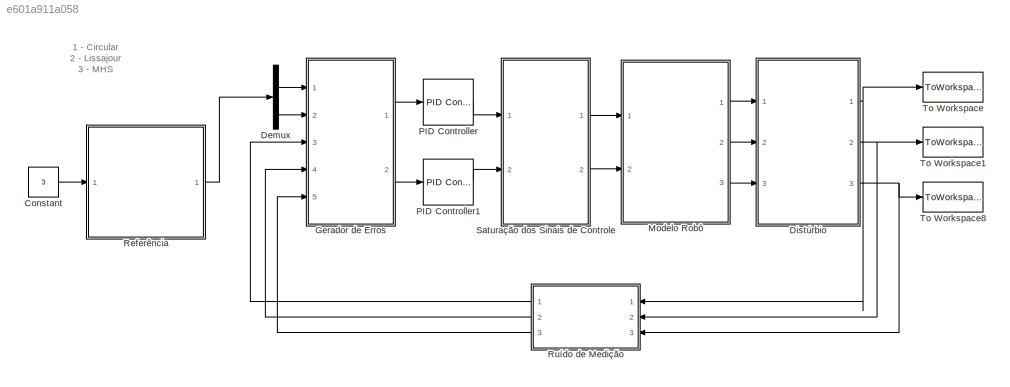
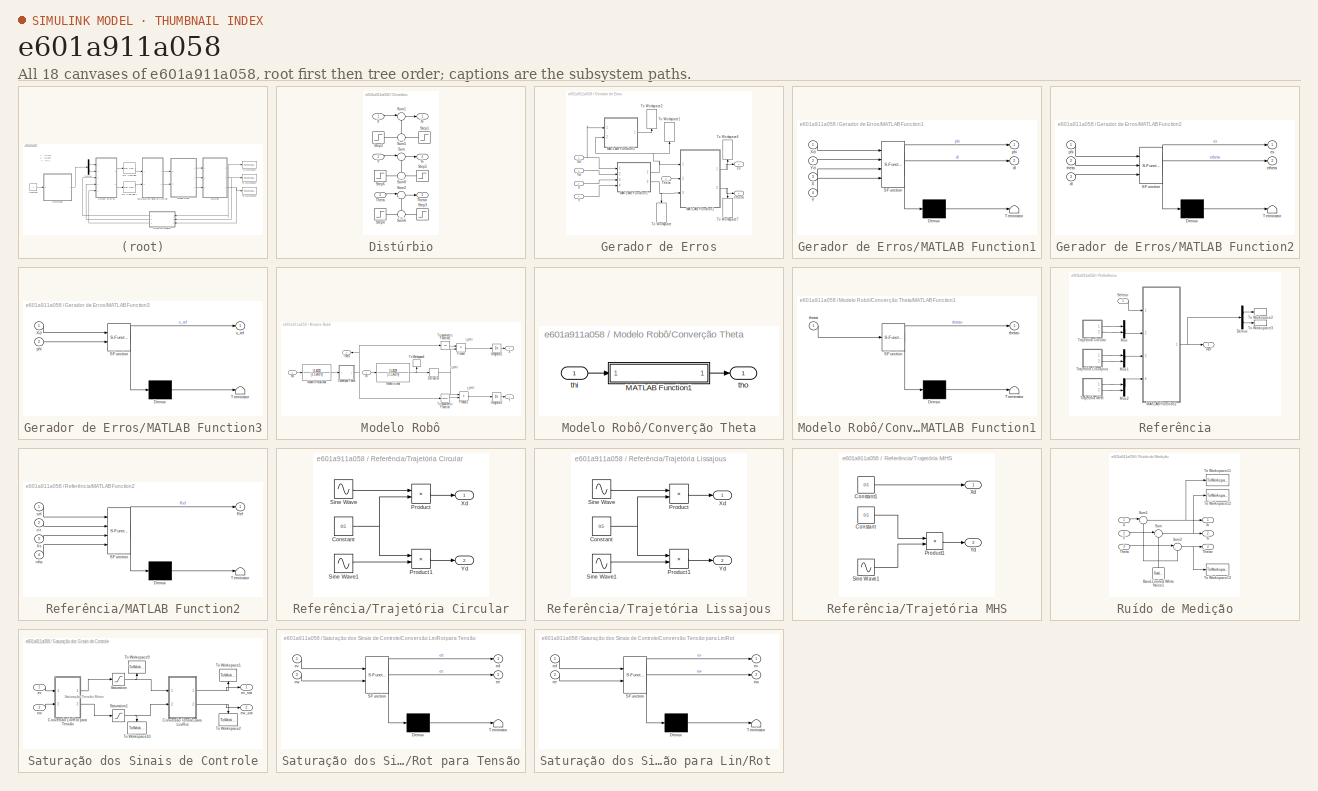
[diagram: thumbnail index - all 18 canvases of the model, root first then tree order]
MODEL slx_e601a911a058
KIND model
CONFIG AbsTol = auto
CONFIG EnableMultiTasking = off
CONFIG FixedStep = auto
CONFIG MaxStep = auto
CONFIG MinStep = auto
CONFIG RelTol = 1e-3
CONFIG SampleTimeConstraint = Unconstrained
CONFIG Solver = FixedStepAuto
CONFIG SolverName = FixedStepAuto
CONFIG StartTime = 0.0
CONFIG StopFcn = figure,plot(out.tout,out.Theta);\nhold on;\nplot(out.tout,out.phi);\ntitle('Ângulo de referência (Phi) e ângulo robô (Theta)');\nxlabel('Tempo (s)');\nylabel('Angulos (rad)');\nlegend('Theta','Phi');\ngrid\n\nfigure,\nsubplot(2,1,1)\nplot(out.tout,out.ed);\nhold on;\nplot(out.tout,out.ee);\nxlabel('Tempo (s)');\nylabel('(a)');\ngrid\n\nsubplot(2,1,2),\nplot(out.tout,out.etheta);\nhold on;\nplot(out.tout,out.es);\nylabe...<+734ch>
CONFIG StopTime = 120
BLOCK [Constant] Constant
  Value = 3
BLOCK [Demux] Demux
  DisplayOption = bar
  Outputs = 2
  Ports = [1, 2]
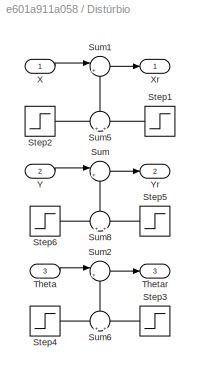
BLOCK [SubSystem] Distúrbio
  Ports = [3, 3]
  RequestExecContextInheritance = off
BLOCK [Step] Distúrbio/Step1
  After = 0.03
  SampleTime = 0
  Time = 60
BLOCK [Step] Distúrbio/Step2
  After = -0.03
  SampleTime = 0
  Time = 61
BLOCK [Step] Distúrbio/Step3
  After = -0.5
  SampleTime = 0
  Time = 61
BLOCK [Step] Distúrbio/Step4
  After = 0.5
  SampleTime = 0
  Time = 60
BLOCK [Step] Distúrbio/Step5
  After = -0.03
  SampleTime = 0
  Time = 60
BLOCK [Step] Distúrbio/Step6
  After = 0.03
  SampleTime = 0
  Time = 61
BLOCK [Sum] Distúrbio/Sum
  IconShape = round
  InputSameDT = off
  Inputs = |++
  OutDataTypeStr = Inherit: Inherit via internal rule
  Ports = [2, 1]
  SaturateOnIntegerOverflow = off
BLOCK [Sum] Distúrbio/Sum1
  IconShape = round
  InputSameDT = off
  Inputs = |++
  OutDataTypeStr = Inherit: Inherit via internal rule
  Ports = [2, 1]
  SaturateOnIntegerOverflow = off
BLOCK [Sum] Distúrbio/Sum2
  IconShape = round
  InputSameDT = off
  Inputs = |++
  OutDataTypeStr = Inherit: Inherit via internal rule
  Ports = [2, 1]
  SaturateOnIntegerOverflow = off
BLOCK [Sum] Distúrbio/Sum5
  IconShape = round
  InputSameDT = off
  Inputs = +|+
  OutDataTypeStr = Inherit: Inherit via internal rule
  Ports = [2, 1]
  SaturateOnIntegerOverflow = off
BLOCK [Sum] Distúrbio/Sum6
  IconShape = round
  InputSameDT = off
  Inputs = +|+
  OutDataTypeStr = Inherit: Inherit via internal rule
  Ports = [2, 1]
  SaturateOnIntegerOverflow = off
BLOCK [Sum] Distúrbio/Sum8
  IconShape = round
  InputSameDT = off
  Inputs = +|+
  OutDataTypeStr = Inherit: Inherit via internal rule
  Ports = [2, 1]
  SaturateOnIntegerOverflow = off
BLOCK [Inport] Distúrbio/Theta 
  IconDisplay = Port number
  Port = 3
BLOCK [Outport] Distúrbio/Thetar
  IconDisplay = Port number
  Port = 3
BLOCK [Inport] Distúrbio/X 
  IconDisplay = Port number
BLOCK [Outport] Distúrbio/Xr
  IconDisplay = Port number
BLOCK [Inport] Distúrbio/Y
  IconDisplay = Port number
  Port = 2
BLOCK [Outport] Distúrbio/Yr
  IconDisplay = Port number
  Port = 2
BLOCK [SubSystem] Gerador de Erros
  Ports = [5, 2]
  RequestExecContextInheritance = off
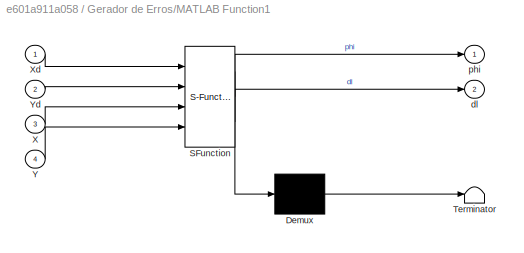
BLOCK [SubSystem] Gerador de Erros/MATLAB Function1
  ErrorFcn = Stateflow.Translate.translate
  PermitHierarchicalResolution = ExplicitOnly
  Ports = [4, 2]
  RequestExecContextInheritance = off
  SFBlockType = MATLAB Function
  TreatAsAtomicUnit = on
BLOCK [Demux] Gerador de Erros/MATLAB Function1/ Demux 
  Outputs = 1
  Ports = [1, 1]
BLOCK [S-Function] Gerador de Erros/MATLAB Function1/ SFunction 
  EnableBusSupport = on
  FunctionName = sf_sfun
  PortCounts = [4 3]
  Ports = [4, 3]
  SFcnIsStateOwnerBlock = off
  SFunctionDeploymentMode = off
  Tag = Stateflow S-Function Modelo_Robo_Drumonsters_teste 3
BLOCK [Terminator] Gerador de Erros/MATLAB Function1/ Terminator 
BLOCK [Inport] Gerador de Erros/MATLAB Function1/X
  IconDisplay = Port number
  Port = 3
BLOCK [Inport] Gerador de Erros/MATLAB Function1/Xd
  IconDisplay = Port number
BLOCK [Inport] Gerador de Erros/MATLAB Function1/Y
  IconDisplay = Port number
  Port = 4
BLOCK [Inport] Gerador de Erros/MATLAB Function1/Yd
  IconDisplay = Port number
  Port = 2
BLOCK [Outport] Gerador de Erros/MATLAB Function1/dl
  IconDisplay = Port number
  Port = 2
BLOCK [Outport] Gerador de Erros/MATLAB Function1/phi
  IconDisplay = Port number
BLOCK [SubSystem] Gerador de Erros/MATLAB Function2
  ErrorFcn = Stateflow.Translate.translate
  PermitHierarchicalResolution = ExplicitOnly
  Ports = [3, 2]
  RequestExecContextInheritance = off
  SFBlockType = MATLAB Function
  TreatAsAtomicUnit = on
BLOCK [Demux] Gerador de Erros/MATLAB Function2/ Demux 
  Outputs = 1
  Ports = [1, 1]
BLOCK [S-Function] Gerador de Erros/MATLAB Function2/ SFunction 
  EnableBusSupport = on
  FunctionName = sf_sfun
  PortCounts = [3 3]
  Ports = [3, 3]
  SFcnIsStateOwnerBlock = off
  SFunctionDeploymentMode = off
  Tag = Stateflow S-Function Modelo_Robo_Drumonsters_teste 4
BLOCK [Terminator] Gerador de Erros/MATLAB Function2/ Terminator 
BLOCK [Inport] Gerador de Erros/MATLAB Function2/dl
  IconDisplay = Port number
  Port = 3
BLOCK [Outport] Gerador de Erros/MATLAB Function2/es
  IconDisplay = Port number
BLOCK [Outport] Gerador de Erros/MATLAB Function2/etheta
  IconDisplay = Port number
  Port = 2
BLOCK [Inport] Gerador de Erros/MATLAB Function2/phi
  IconDisplay = Port number
BLOCK [Inport] Gerador de Erros/MATLAB Function2/theta
  IconDisplay = Port number
  Port = 2
BLOCK [SubSystem] Gerador de Erros/MATLAB Function3
  ErrorFcn = Stateflow.Translate.translate
  PermitHierarchicalResolution = ExplicitOnly
  Ports = [2, 1]
  RequestExecContextInheritance = off
  SFBlockType = MATLAB Function
  TreatAsAtomicUnit = on
BLOCK [Demux] Gerador de Erros/MATLAB Function3/ Demux 
  Outputs = 1
  Ports = [1, 1]
BLOCK [S-Function] Gerador de Erros/MATLAB Function3/ SFunction 
  EnableBusSupport = on
  FunctionName = sf_sfun
  PortCounts = [2 2]
  Ports = [2, 2]
  SFcnIsStateOwnerBlock = off
  SFunctionDeploymentMode = off
  Tag = Stateflow S-Function Modelo_Robo_Drumonsters_teste 2
BLOCK [Terminator] Gerador de Erros/MATLAB Function3/ Terminator 
BLOCK [Inport] Gerador de Erros/MATLAB Function3/Xd
  IconDisplay = Port number
BLOCK [Inport] Gerador de Erros/MATLAB Function3/phi
  IconDisplay = Port number
  Port = 2
BLOCK [Outport] Gerador de Erros/MATLAB Function3/s_ref
  IconDisplay = Port number
BLOCK [Inport] Gerador de Erros/Theta 
  IconDisplay = Port number
  Port = 5
BLOCK [ToWorkspace] Gerador de Erros/To Workspace
  FixptAsFi = on
  MaxDataPoints = inf
  Ports = [1]
  SampleTime = -1
  VariableName = dl
BLOCK [ToWorkspace] Gerador de Erros/To Workspace1
  FixptAsFi = on
  MaxDataPoints = inf
  Ports = [1]
  SampleTime = -1
  VariableName = phi
BLOCK [ToWorkspace] Gerador de Erros/To Workspace2
  FixptAsFi = on
  MaxDataPoints = inf
  Ports = [1]
  SampleTime = -1
  VariableName = s_ref
BLOCK [ToWorkspace] Gerador de Erros/To Workspace6
  FixptAsFi = on
  MaxDataPoints = inf
  Ports = [1]
  SampleTime = -1
  VariableName = es
BLOCK [ToWorkspace] Gerador de Erros/To Workspace7
  FixptAsFi = on
  MaxDataPoints = inf
  Ports = [1]
  SampleTime = -1
  VariableName = etheta
BLOCK [Inport] Gerador de Erros/X
  IconDisplay = Port number
  Port = 3
BLOCK [Inport] Gerador de Erros/Xd
  IconDisplay = Port number
BLOCK [Inport] Gerador de Erros/Y
  IconDisplay = Port number
  Port = 4
BLOCK [Inport] Gerador de Erros/Yd
  IconDisplay = Port number
  Port = 2
BLOCK [Outport] Gerador de Erros/es
  IconDisplay = Port number
BLOCK [Outport] Gerador de Erros/etheta
  IconDisplay = Port number
  Port = 2
BLOCK [SubSystem] Modelo Robô
  Ports = [2, 3]
  RequestExecContextInheritance = off
BLOCK [SubSystem] Modelo Robô/Converção Theta
  Ports = [1, 1]
  RequestExecContextInheritance = off
BLOCK [SubSystem] Modelo Robô/Converção Theta/MATLAB Function1
  ErrorFcn = Stateflow.Translate.translate
  PermitHierarchicalResolution = ExplicitOnly
  Ports = [1, 1]
  RequestExecContextInheritance = off
  SFBlockType = MATLAB Function
  TreatAsAtomicUnit = on
BLOCK [Demux] Modelo Robô/Converção Theta/MATLAB Function1/ Demux 
  Outputs = 1
  Ports = [1, 1]
BLOCK [S-Function] Modelo Robô/Converção Theta/MATLAB Function1/ SFunction 
  EnableBusSupport = on
  FunctionName = sf_sfun
  PortCounts = [1 2]
  Ports = [1, 2]
  SFcnIsStateOwnerBlock = off
  SFunctionDeploymentMode = off
  Tag = Stateflow S-Function Modelo_Robo_Drumonsters_teste 1
BLOCK [Terminator] Modelo Robô/Converção Theta/MATLAB Function1/ Terminator 
BLOCK [Inport] Modelo Robô/Converção Theta/MATLAB Function1/thetai
  IconDisplay = Port number
BLOCK [Outport] Modelo Robô/Converção Theta/MATLAB Function1/thetao
  IconDisplay = Port number
BLOCK [Inport] Modelo Robô/Converção Theta/thi 
  IconDisplay = Port number
BLOCK [Outport] Modelo Robô/Converção Theta/tho
  IconDisplay = Port number
BLOCK [Derivative] Modelo Robô/Derivative
BLOCK [Integrator] Modelo Robô/Integrator1
  Ports = [1, 1]
BLOCK [Integrator] Modelo Robô/Integrator2
  Ports = [1, 1]
BLOCK [TransferFcn] Modelo Robô/Modelo Linear
  Denominator = [1 1.2672 0]
  Numerator = [1.2672]
BLOCK [TransferFcn] Modelo Robô/Modelo Rotacional
  Denominator = [1 1.6473 0]
  Numerator = [1.6473]
BLOCK [Product] Modelo Robô/Product
  InputSameDT = off
  OutDataTypeStr = Inherit: Inherit via internal rule
  Ports = [2, 1]
  RndMeth = Floor
  SaturateOnIntegerOverflow = off
BLOCK [Product] Modelo Robô/Product1
  InputSameDT = off
  OutDataTypeStr = Inherit: Inherit via internal rule
  Ports = [2, 1]
  RndMeth = Floor
  SaturateOnIntegerOverflow = off
BLOCK [Outport] Modelo Robô/Theta 
  IconDisplay = Port number
  Port = 3
BLOCK [ToWorkspace] Modelo Robô/To Workspace4
  FixptAsFi = on
  MaxDataPoints = inf
  Ports = [1]
  SampleTime = -1
  VariableName = s
BLOCK [Trigonometry] Modelo Robô/Trigonometric Function
  Ports = [1, 1]
BLOCK [Trigonometry] Modelo Robô/Trigonometric Function1
  Operator = cos
  Ports = [1, 1]
BLOCK [Outport] Modelo Robô/X
  IconDisplay = Port number
BLOCK [Outport] Modelo Robô/Y
  IconDisplay = Port number
  Port = 2
BLOCK [Inport] Modelo Robô/ev 
  IconDisplay = Port number
BLOCK [Inport] Modelo Robô/ew
  IconDisplay = Port number
  Port = 2
BLOCK [Reference] PID Controller  REF=simulink/Continuous/PID Controller
  Ports = [1, 1]
  SourceBlock = simulink/Continuous/PID Controller
  SourceProductBaseCode = SL
  SourceProductName = Simulink
  SourceType = PID 1dof
BLOCK [Reference] PID Controller1  REF=simulink/Continuous/PID Controller
  Ports = [1, 1]
  SourceBlock = simulink/Continuous/PID Controller
  SourceProductBaseCode = SL
  SourceProductName = Simulink
  SourceType = PID 1dof
BLOCK [SubSystem] Referência
  Ports = [1, 1]
  RequestExecContextInheritance = off
BLOCK [Demux] Referência/Demux
  DisplayOption = bar
  Outputs = 2
  Ports = [1, 2]
BLOCK [SubSystem] Referência/MATLAB Function2
  ErrorFcn = Stateflow.Translate.translate
  PermitHierarchicalResolution = ExplicitOnly
  Ports = [4, 1]
  RequestExecContextInheritance = off
  SFBlockType = MATLAB Function
  TreatAsAtomicUnit = on
BLOCK [Demux] Referência/MATLAB Function2/ Demux 
  Outputs = 1
  Ports = [1, 1]
BLOCK [S-Function] Referência/MATLAB Function2/ SFunction 
  EnableBusSupport = on
  FunctionName = sf_sfun
  PortCounts = [4 2]
  Ports = [4, 2]
  SFcnIsStateOwnerBlock = off
  SFunctionDeploymentMode = off
  Tag = Stateflow S-Function Modelo_Robo_Drumonsters_teste 5
BLOCK [Terminator] Referência/MATLAB Function2/ Terminator 
BLOCK [Outport] Referência/MATLAB Function2/Ref
  IconDisplay = Port number
BLOCK [Inport] Referência/MATLAB Function2/cir
  IconDisplay = Port number
  Port = 2
BLOCK [Inport] Referência/MATLAB Function2/lis
  IconDisplay = Port number
  Port = 3
BLOCK [Inport] Referência/MATLAB Function2/mhs
  IconDisplay = Port number
  Port = 4
BLOCK [Inport] Referência/MATLAB Function2/sel
  IconDisplay = Port number
BLOCK [Mux] Referência/Mux
  DisplayOption = bar
  Inputs = 2
  Ports = [2, 1]
BLOCK [Mux] Referência/Mux1
  DisplayOption = bar
  Inputs = 2
  Ports = [2, 1]
BLOCK [Mux] Referência/Mux2
  DisplayOption = bar
  Inputs = 2
  Ports = [2, 1]
BLOCK [Outport] Referência/Ref
  IconDisplay = Port number
BLOCK [Inport] Referência/Seletor
  IconDisplay = Port number
BLOCK [ToWorkspace] Referência/To Workspace2
  FixptAsFi = on
  MaxDataPoints = inf
  Ports = [1]
  SampleTime = -1
  VariableName = Xd
BLOCK [ToWorkspace] Referência/To Workspace3
  FixptAsFi = on
  MaxDataPoints = inf
  Ports = [1]
  SampleTime = -1
  VariableName = Yd
BLOCK [SubSystem] Referência/Trajetória Circular
  Ports = [0, 2]
  RequestExecContextInheritance = off
BLOCK [Constant] Referência/Trajetória Circular/Constant
  Value = 0.5
BLOCK [Product] Referência/Trajetória Circular/Product
  InputSameDT = off
  OutDataTypeStr = Inherit: Inherit via internal rule
  Ports = [2, 1]
  RndMeth = Floor
  SaturateOnIntegerOverflow = off
BLOCK [Product] Referência/Trajetória Circular/Product1
  InputSameDT = off
  OutDataTypeStr = Inherit: Inherit via internal rule
  Ports = [2, 1]
  RndMeth = Floor
  SaturateOnIntegerOverflow = off
BLOCK [Sin] Referência/Trajetória Circular/Sine Wave
  Frequency = 0.0625
  Phase = pi/2
  Ports = [0, 1]
  SampleTime = 0
BLOCK [Sin] Referência/Trajetória Circular/Sine Wave1
  Frequency = 0.0625
  Ports = [0, 1]
  SampleTime = 0
BLOCK [Outport] Referência/Trajetória Circular/Xd
  IconDisplay = Port number
BLOCK [Outport] Referência/Trajetória Circular/Yd
  IconDisplay = Port number
  Port = 2
BLOCK [SubSystem] Referência/Trajetória Lissajous
  Ports = [0, 2]
  RequestExecContextInheritance = off
BLOCK [Constant] Referência/Trajetória Lissajous/Constant
  Value = 0.5
BLOCK [Product] Referência/Trajetória Lissajous/Product
  InputSameDT = off
  OutDataTypeStr = Inherit: Inherit via internal rule
  Ports = [2, 1]
  RndMeth = Floor
  SaturateOnIntegerOverflow = off
BLOCK [Product] Referência/Trajetória Lissajous/Product1
  InputSameDT = off
  OutDataTypeStr = Inherit: Inherit via internal rule
  Ports = [2, 1]
  RndMeth = Floor
  SaturateOnIntegerOverflow = off
BLOCK [Sin] Referência/Trajetória Lissajous/Sine Wave
  Frequency = 0.05
  Ports = [0, 1]
  SampleTime = 0
BLOCK [Sin] Referência/Trajetória Lissajous/Sine Wave1
  Frequency = 0.1
  Ports = [0, 1]
  SampleTime = 0
BLOCK [Outport] Referência/Trajetória Lissajous/Xd
  IconDisplay = Port number
BLOCK [Outport] Referência/Trajetória Lissajous/Yd
  IconDisplay = Port number
  Port = 2
BLOCK [SubSystem] Referência/Trajetória MHS
  Ports = [0, 2]
  RequestExecContextInheritance = off
BLOCK [Constant] Referência/Trajetória MHS/Constant
  Value = 0.5
BLOCK [Constant] Referência/Trajetória MHS/Constant1
  Value = 0.5
BLOCK [Product] Referência/Trajetória MHS/Product1
  InputSameDT = off
  OutDataTypeStr = Inherit: Inherit via internal rule
  Ports = [2, 1]
  RndMeth = Floor
  SaturateOnIntegerOverflow = off
BLOCK [Sin] Referência/Trajetória MHS/Sine Wave1
  Frequency = 0.1
  Ports = [0, 1]
  SampleTime = 0
BLOCK [Outport] Referência/Trajetória MHS/Xd
  IconDisplay = Port number
BLOCK [Outport] Referência/Trajetória MHS/Yd
  IconDisplay = Port number
  Port = 2
BLOCK [SubSystem] Ruído de Medição
  Ports = [3, 3]
  RequestExecContextInheritance = off
BLOCK [Reference] Ruído de Medição/Band-Limited White Noise1  REF=simulink/Sources/Band-Limited
White Noise
  Ports = [0, 1]
  SourceBlock = simulink/Sources/Band-Limited\nWhite Noise
  SourceProductBaseCode = SL
  SourceProductName = Simulink
  SourceType = Band-Limited White Noise.
BLOCK [Sum] Ruído de Medição/Sum
  IconShape = round
  InputSameDT = off
  Inputs = |++
  OutDataTypeStr = Inherit: Inherit via internal rule
  Ports = [2, 1]
  SaturateOnIntegerOverflow = off
BLOCK [Sum] Ruído de Medição/Sum1
  IconShape = round
  InputSameDT = off
  Inputs = |++
  OutDataTypeStr = Inherit: Inherit via internal rule
  Ports = [2, 1]
  SaturateOnIntegerOverflow = off
BLOCK [Sum] Ruído de Medição/Sum2
  IconShape = round
  InputSameDT = off
  Inputs = |++
  OutDataTypeStr = Inherit: Inherit via internal rule
  Ports = [2, 1]
  SaturateOnIntegerOverflow = off
BLOCK [Inport] Ruído de Medição/Theta 
  IconDisplay = Port number
  Port = 3
BLOCK [Outport] Ruído de Medição/Thetar
  IconDisplay = Port number
  Port = 3
BLOCK [ToWorkspace] Ruído de Medição/To Workspace11
  FixptAsFi = on
  MaxDataPoints = inf
  Ports = [1]
  SampleTime = -1
  VariableName = Xr
BLOCK [ToWorkspace] Ruído de Medição/To Workspace12
  FixptAsFi = on
  MaxDataPoints = inf
  Ports = [1]
  SampleTime = -1
  VariableName = Yr
BLOCK [ToWorkspace] Ruído de Medição/To Workspace13
  FixptAsFi = on
  MaxDataPoints = inf
  Ports = [1]
  SampleTime = -1
  VariableName = Thetar
BLOCK [Inport] Ruído de Medição/X 
  IconDisplay = Port number
BLOCK [Outport] Ruído de Medição/Xr
  IconDisplay = Port number
BLOCK [Inport] Ruído de Medição/Y
  IconDisplay = Port number
  Port = 2
BLOCK [Outport] Ruído de Medição/Yr
  IconDisplay = Port number
  Port = 2
BLOCK [SubSystem] Saturação dos Sinais de Controle
  Ports = [2, 2]
  RequestExecContextInheritance = off
BLOCK [SubSystem] Saturação dos Sinais de Controle/Conversão Lin//Rot para Tensão
  ErrorFcn = Stateflow.Translate.translate
  PermitHierarchicalResolution = ExplicitOnly
  Ports = [2, 2]
  RequestExecContextInheritance = off
  SFBlockType = MATLAB Function
  TreatAsAtomicUnit = on
BLOCK [Demux] Saturação dos Sinais de Controle/Conversão Lin//Rot para Tensão/ Demux 
  Outputs = 1
  Ports = [1, 1]
BLOCK [S-Function] Saturação dos Sinais de Controle/Conversão Lin//Rot para Tensão/ SFunction 
  EnableBusSupport = on
  FunctionName = sf_sfun
  PortCounts = [2 3]
  Ports = [2, 3]
  SFcnIsStateOwnerBlock = off
  SFunctionDeploymentMode = off
  Tag = Stateflow S-Function Modelo_Robo_Drumonsters_teste 6
BLOCK [Terminator] Saturação dos Sinais de Controle/Conversão Lin//Rot para Tensão/ Terminator 
BLOCK [Outport] Saturação dos Sinais de Controle/Conversão Lin//Rot para Tensão/ed
  IconDisplay = Port number
BLOCK [Outport] Saturação dos Sinais de Controle/Conversão Lin//Rot para Tensão/ee
  IconDisplay = Port number
  Port = 2
BLOCK [Inport] Saturação dos Sinais de Controle/Conversão Lin//Rot para Tensão/ev
  IconDisplay = Port number
BLOCK [Inport] Saturação dos Sinais de Controle/Conversão Lin//Rot para Tensão/ew
  IconDisplay = Port number
  Port = 2
BLOCK [SubSystem] Saturação dos Sinais de Controle/Conversão Tensão para Lin//Rot 
  ErrorFcn = Stateflow.Translate.translate
  PermitHierarchicalResolution = ExplicitOnly
  Ports = [2, 2]
  RequestExecContextInheritance = off
  SFBlockType = MATLAB Function
  TreatAsAtomicUnit = on
BLOCK [Demux] Saturação dos Sinais de Controle/Conversão Tensão para Lin//Rot / Demux 
  Outputs = 1
  Ports = [1, 1]
BLOCK [S-Function] Saturação dos Sinais de Controle/Conversão Tensão para Lin//Rot / SFunction 
  EnableBusSupport = on
  FunctionName = sf_sfun
  PortCounts = [2 3]
  Ports = [2, 3]
  SFcnIsStateOwnerBlock = off
  SFunctionDeploymentMode = off
  Tag = Stateflow S-Function Modelo_Robo_Drumonsters_teste 7
BLOCK [Terminator] Saturação dos Sinais de Controle/Conversão Tensão para Lin//Rot / Terminator 
BLOCK [Inport] Saturação dos Sinais de Controle/Conversão Tensão para Lin//Rot /ed
  IconDisplay = Port number
BLOCK [Inport] Saturação dos Sinais de Controle/Conversão Tensão para Lin//Rot /ee
  IconDisplay = Port number
  Port = 2
BLOCK [Outport] Saturação dos Sinais de Controle/Conversão Tensão para Lin//Rot /ev
  IconDisplay = Port number
BLOCK [Outport] Saturação dos Sinais de Controle/Conversão Tensão para Lin//Rot /ew
  IconDisplay = Port number
  Port = 2
BLOCK [Saturate] Saturação dos Sinais de Controle/Saturation
  InputPortMap = u0
  LowerLimit = -6
  Ports = [1, 1]
  UpperLimit = 6
BLOCK [Saturate] Saturação dos Sinais de Controle/Saturation1
  InputPortMap = u0
  LowerLimit = -6
  Ports = [1, 1]
  UpperLimit = 6
BLOCK [ToWorkspace] Saturação dos Sinais de Controle/To Workspace1
  FixptAsFi = on
  MaxDataPoints = inf
  Ports = [1]
  SampleTime = -1
  VariableName = Ut
BLOCK [ToWorkspace] Saturação dos Sinais de Controle/To Workspace10
  FixptAsFi = on
  MaxDataPoints = inf
  Ports = [1]
  SampleTime = -1
  VariableName = ee
BLOCK [ToWorkspace] Saturação dos Sinais de Controle/To Workspace2
  FixptAsFi = on
  MaxDataPoints = inf
  Ports = [1]
  SampleTime = -1
  VariableName = Ur
BLOCK [ToWorkspace] Saturação dos Sinais de Controle/To Workspace9
  FixptAsFi = on
  MaxDataPoints = inf
  Ports = [1]
  SampleTime = -1
  VariableName = ed
BLOCK [Inport] Saturação dos Sinais de Controle/ev 
  IconDisplay = Port number
BLOCK [Outport] Saturação dos Sinais de Controle/ev_sat
  IconDisplay = Port number
BLOCK [Inport] Saturação dos Sinais de Controle/ew
  IconDisplay = Port number
  Port = 2
BLOCK [Outport] Saturação dos Sinais de Controle/ew_sat
  IconDisplay = Port number
  Port = 2
BLOCK [ToWorkspace] To Workspace
  FixptAsFi = on
  MaxDataPoints = inf
  Ports = [1]
  SampleTime = -1
  VariableName = X
BLOCK [ToWorkspace] To Workspace1
  FixptAsFi = on
  MaxDataPoints = inf
  Ports = [1]
  SampleTime = -1
  VariableName = Y
BLOCK [ToWorkspace] To Workspace8
  FixptAsFi = on
  MaxDataPoints = inf
  Ports = [1]
  SampleTime = -1
  VariableName = Theta
ANNOTATION (root): 1 - Circular 2 - Lissajour 3 - MHS
ANNOTATION Modelo Robô: s_ponto
ANNOTATION Modelo Robô: x_ponto
ANNOTATION Modelo Robô: y_ponto
ANNOTATION Saturação dos Sinais de Controle: Saturação Tensão Motor
LINE Constant:1 -> Referência:1
LINE Demux:1 -> Gerador de Erros:1
LINE Demux:2 -> Gerador de Erros:2
LINE Distúrbio/Step1:1 -> Distúrbio/Sum5:2
LINE Distúrbio/Step2:1 -> Distúrbio/Sum5:1
LINE Distúrbio/Step3:1 -> Distúrbio/Sum6:2
LINE Distúrbio/Step4:1 -> Distúrbio/Sum6:1
LINE Distúrbio/Step5:1 -> Distúrbio/Sum8:2
LINE Distúrbio/Step6:1 -> Distúrbio/Sum8:1
LINE Distúrbio/Sum1:1 -> Distúrbio/Xr:1
LINE Distúrbio/Sum2:1 -> Distúrbio/Thetar:1
LINE Distúrbio/Sum5:1 -> Distúrbio/Sum1:2
LINE Distúrbio/Sum6:1 -> Distúrbio/Sum2:2
LINE Distúrbio/Sum8:1 -> Distúrbio/Sum:2
LINE Distúrbio/Sum:1 -> Distúrbio/Yr:1
LINE Distúrbio/Theta :1 -> Distúrbio/Sum2:1
LINE Distúrbio/X :1 -> Distúrbio/Sum1:1
LINE Distúrbio/Y:1 -> Distúrbio/Sum:1
NET Distúrbio:1 -> Ruído de Medição:1, To Workspace:1
NET Distúrbio:2 -> Ruído de Medição:2, To Workspace1:1
NET Distúrbio:3 -> Ruído de Medição:3, To Workspace8:1
NET Gerador de Erros/MATLAB Function1:1 -> Gerador de Erros/MATLAB Function2:1, Gerador de Erros/MATLAB Function3:2, Gerador de Erros/To Workspace1:1
NET Gerador de Erros/MATLAB Function1:2 -> Gerador de Erros/MATLAB Function2:3, Gerador de Erros/To Workspace:1
NET Gerador de Erros/MATLAB Function2:1 -> Gerador de Erros/To Workspace6:1, Gerador de Erros/es:1
NET Gerador de Erros/MATLAB Function2:2 -> Gerador de Erros/To Workspace7:1, Gerador de Erros/etheta:1
LINE Gerador de Erros/MATLAB Function3:1 -> Gerador de Erros/To Workspace2:1
LINE Gerador de Erros/Theta :1 -> Gerador de Erros/MATLAB Function2:2
LINE Gerador de Erros/X:1 -> Gerador de Erros/MATLAB Function1:3
NET Gerador de Erros/Xd:1 -> Gerador de Erros/MATLAB Function1:1, Gerador de Erros/MATLAB Function3:1
LINE Gerador de Erros/Y:1 -> Gerador de Erros/MATLAB Function1:4
LINE Gerador de Erros/Yd:1 -> Gerador de Erros/MATLAB Function1:2
LINE Gerador de Erros:1 -> PID Controller:1
LINE Gerador de Erros:2 -> PID Controller1:1
LINE Modelo Robô/Converção Theta/MATLAB Function1:1 -> Modelo Robô/Converção Theta/tho:1
LINE Modelo Robô/Converção Theta/thi :1 -> Modelo Robô/Converção Theta/MATLAB Function1:1
NET Modelo Robô/Converção Theta:1 -> Modelo Robô/Theta :1, Modelo Robô/Trigonometric Function1:1, Modelo Robô/Trigonometric Function:1
NET Modelo Robô/Derivative:1 -> Modelo Robô/Product1:1, Modelo Robô/Product:2
LINE Modelo Robô/Integrator1:1 -> Modelo Robô/X:1
LINE Modelo Robô/Integrator2:1 -> Modelo Robô/Y:1
NET Modelo Robô/Modelo Linear:1 -> Modelo Robô/Derivative:1, Modelo Robô/To Workspace4:1
LINE Modelo Robô/Modelo Rotacional:1 -> Modelo Robô/Converção Theta:1
LINE Modelo Robô/Product1:1 -> Modelo Robô/Integrator2:1
LINE Modelo Robô/Product:1 -> Modelo Robô/Integrator1:1
LINE Modelo Robô/Trigonometric Function1:1 -> Modelo Robô/Product:1
LINE Modelo Robô/Trigonometric Function:1 -> Modelo Robô/Product1:2
LINE Modelo Robô/ev :1 -> Modelo Robô/Modelo Linear:1
LINE Modelo Robô/ew:1 -> Modelo Robô/Modelo Rotacional:1
LINE Modelo Robô:1 -> Distúrbio:1
LINE Modelo Robô:2 -> Distúrbio:2
LINE Modelo Robô:3 -> Distúrbio:3
LINE PID Controller1:1 -> Saturação dos Sinais de Controle:2
LINE PID Controller:1 -> Saturação dos Sinais de Controle:1
LINE Referência/Demux:1 -> Referência/To Workspace2:1
LINE Referência/Demux:2 -> Referência/To Workspace3:1
NET Referência/MATLAB Function2:1 -> Referência/Demux:1, Referência/Ref:1
LINE Referência/Mux1:1 -> Referência/MATLAB Function2:3
LINE Referência/Mux2:1 -> Referência/MATLAB Function2:4
LINE Referência/Mux:1 -> Referência/MATLAB Function2:2
LINE Referência/Seletor:1 -> Referência/MATLAB Function2:1
NET Referência/Trajetória Circular/Constant:1 -> Referência/Trajetória Circular/Product1:1, Referência/Trajetória Circular/Product:2
LINE Referência/Trajetória Circular/Product1:1 -> Referência/Trajetória Circular/Yd:1
LINE Referência/Trajetória Circular/Product:1 -> Referência/Trajetória Circular/Xd:1
LINE Referência/Trajetória Circular/Sine Wave1:1 -> Referência/Trajetória Circular/Product1:2
LINE Referência/Trajetória Circular/Sine Wave:1 -> Referência/Trajetória Circular/Product:1
LINE Referência/Trajetória Circular:1 -> Referência/Mux:1
LINE Referência/Trajetória Circular:2 -> Referência/Mux:2
NET Referência/Trajetória Lissajous/Constant:1 -> Referência/Trajetória Lissajous/Product1:1, Referência/Trajetória Lissajous/Product:2
LINE Referência/Trajetória Lissajous/Product1:1 -> Referência/Trajetória Lissajous/Yd:1
LINE Referência/Trajetória Lissajous/Product:1 -> Referência/Trajetória Lissajous/Xd:1
LINE Referência/Trajetória Lissajous/Sine Wave1:1 -> Referência/Trajetória Lissajous/Product1:2
LINE Referência/Trajetória Lissajous/Sine Wave:1 -> Referência/Trajetória Lissajous/Product:1
LINE Referência/Trajetória Lissajous:1 -> Referência/Mux1:1
LINE Referência/Trajetória Lissajous:2 -> Referência/Mux1:2
LINE Referência/Trajetória MHS/Constant1:1 -> Referência/Trajetória MHS/Xd:1
LINE Referência/Trajetória MHS/Constant:1 -> Referência/Trajetória MHS/Product1:1
LINE Referência/Trajetória MHS/Product1:1 -> Referência/Trajetória MHS/Yd:1
LINE Referência/Trajetória MHS/Sine Wave1:1 -> Referência/Trajetória MHS/Product1:2
LINE Referência/Trajetória MHS:1 -> Referência/Mux2:1
LINE Referência/Trajetória MHS:2 -> Referência/Mux2:2
LINE Referência:1 -> Demux:1
NET Ruído de Medição/Band-Limited White Noise1:1 -> Ruído de Medição/Sum1:2, Ruído de Medição/Sum2:2, Ruído de Medição/Sum:2
NET Ruído de Medição/Sum1:1 -> Ruído de Medição/To Workspace11:1, Ruído de Medição/Xr:1
NET Ruído de Medição/Sum2:1 -> Ruído de Medição/Thetar:1, Ruído de Medição/To Workspace13:1
NET Ruído de Medição/Sum:1 -> Ruído de Medição/To Workspace12:1, Ruído de Medição/Yr:1
LINE Ruído de Medição/Theta :1 -> Ruído de Medição/Sum2:1
LINE Ruído de Medição/X :1 -> Ruído de Medição/Sum1:1
LINE Ruído de Medição/Y:1 -> Ruído de Medição/Sum:1
LINE Ruído de Medição:1 -> Gerador de Erros:3
LINE Ruído de Medição:2 -> Gerador de Erros:4
LINE Ruído de Medição:3 -> Gerador de Erros:5
LINE Saturação dos Sinais de Controle/Conversão Lin//Rot para Tensão:1 -> Saturação dos Sinais de Controle/Saturation:1
LINE Saturação dos Sinais de Controle/Conversão Lin//Rot para Tensão:2 -> Saturação dos Sinais de Controle/Saturation1:1
NET Saturação dos Sinais de Controle/Conversão Tensão para Lin//Rot :1 -> Saturação dos Sinais de Controle/To Workspace1:1, Saturação dos Sinais de Controle/ev_sat:1
NET Saturação dos Sinais de Controle/Conversão Tensão para Lin//Rot :2 -> Saturação dos Sinais de Controle/To Workspace2:1, Saturação dos Sinais de Controle/ew_sat:1
NET Saturação dos Sinais de Controle/Saturation1:1 -> Saturação dos Sinais de Controle/Conversão Tensão para Lin//Rot :2, Saturação dos Sinais de Controle/To Workspace10:1
NET Saturação dos Sinais de Controle/Saturation:1 -> Saturação dos Sinais de Controle/Conversão Tensão para Lin//Rot :1, Saturação dos Sinais de Controle/To Workspace9:1
LINE Saturação dos Sinais de Controle/ev :1 -> Saturação dos Sinais de Controle/Conversão Lin//Rot para Tensão:1
LINE Saturação dos Sinais de Controle/ew:1 -> Saturação dos Sinais de Controle/Conversão Lin//Rot para Tensão:2
LINE Saturação dos Sinais de Controle:1 -> Modelo Robô:1
LINE Saturação dos Sinais de Controle:2 -> Modelo Robô:2
note: NET lines group one-source signal fan-out (src -> all destinations, sorted); 1:1 wires keep LINE
CHART Modelo Robô/Converção
Theta/MATLAB Function1 states=1 transitions=1
  STATE_LABEL 'eML_blk_kernel()'
  STATE_LABEL 'SCRIPT:\n%%%%%%%%%%%%%%%%%%%%%%%%%%%%%%%%%%%%%%%%%%%%%%%%%%\n%%%%%%%%%%% CONVERSAO DE THETA %%%%%%%%%%%\n%%%%%%%%%%%%%%%%%%%%%%%%%%%%%%%%%%%%%%%%%%%%%%%%%%\n\nfunction thetao = fcn(thetai)\n\nif(thetai >= 0) % VERIFICA SE O THETA DO ROBÔ É MAIOR QUE ZERO\n    if((2*pi - thetai) < 0) % VERIFICA SE É MAIOR QUE 2PI\n        thetai = 2*pi - thetai; % CONVERTE PARA O INTERVALO\n        thetai = -thetai;       % ...<+637ch>'
CHART Gerador de 
Erros/MATLAB Function3 states=1 transitions=1
  STATE_LABEL 'eML_blk_kernel()'
  STATE_LABEL 'SCRIPT:\n%%%%%%%%%%%%%%%%%%%%%%%%%%%%%%%%%%%%%%%%%%%%%%%%%%\n%%%%%%%%%%% FUNCAO CALCULO DE phi E dl %%%%%%%%%%%\n%%%%%%%%%%%%%%%%%%%%%%%%%%%%%%%%%%%%%%%%%%%%%%%%%%\n\nfunction s_ref  = fcn(Xd,phi)\n\ns_ref = Xd / sin(phi);\n\nend'
CHART Gerador de 
Erros/MATLAB Function1 states=1 transitions=1
  STATE_LABEL 'eML_blk_kernel()'
  STATE_LABEL 'SCRIPT:\n%%%%%%%%%%%%%%%%%%%%%%%%%%%%%%%%%%%%%%%%%%%%%%%%%%\n%%%%%%%%%%% FUNCAO CALCULO DE phi E dl %%%%%%%%%%%\n%%%%%%%%%%%%%%%%%%%%%%%%%%%%%%%%%%%%%%%%%%%%%%%%%%\n\nfunction [phi,dl] = fcn(Xd,Yd,X,Y)\n\nphi = atan2((Yd-Y),(Xd-X)); % CALCULO DE PHI\ndl = sqrt((Yd-Y)*(Yd-Y)+(Xd-X)*(Xd-X)); % CALCULO DE DL\n\nend'
CHART Gerador de 
Erros/MATLAB Function2 states=1 transitions=1
  STATE_LABEL 'eML_blk_kernel()'
  STATE_LABEL 'SCRIPT:\n%%%%%%%%%%%%%%%%%%%%%%%%%%%%%%%%%%%%%%%%%%%%%%%%%%\n%%%%%% CALCULO DOS ERROS LINEAR E ANGULAR %%%%%%%%\n%%%%%%%%%%%%%%%%%%%%%%%%%%%%%%%%%%%%%%%%%%%%%%%%%%\n\n\nfunction [es,etheta] = fcn(phi,theta,dl)\n\ndphi = phi-theta;\n\nes = dl*cos(phi-theta); % ERRO LINEAR\n\n    if(abs(dphi) < pi/2) % ERRO ANGULAR\n        etheta = dphi;\n        %etheta = sin(etheta);\n    else\n        etheta = dphi - pi*sign(dp...<+55ch>'
CHART Referência/MATLAB Function2 states=1 transitions=1
  STATE_LABEL 'eML_blk_kernel()'
  STATE_LABEL 'SCRIPT:\n%%%%%%%%%%%%%%%%%%%%%%%%%%%%%%%%%%%%%%%%%%%%%%%%%%\n%%%%%%%%%%%%%% SELECAO DE TRAJETORIA %%%%%%%%%%%%%\n%%%%%%%%%%%%%%%%%%%%%%%%%%%%%%%%%%%%%%%%%%%%%%%%%%\n\nfunction Ref = fcn(sel,cir,lis,mhs)\n\nif(sel == 1)        % SELECIONA CIRCULAR\n    Ref = cir;\nelseif(sel == 2)    % SELECIONA CURVA DE BERNOULLI\n    Ref = lis;\nelse                % ESTRATEGIA DE DEFESA MHS\n    Ref = mhs;\nend\n\n    \n'
CHART Saturação dos 
Sinais de Controle/Conversão Lin//Rot 
para Tensão states=1 transitions=1
  STATE_LABEL 'eML_blk_kernel()'
  STATE_LABEL 'SCRIPT:\n%%%%%%%%%%%%%%%%%%%%%%%%%%%%%%%%%%%%%%%%%%%%%%%%%%\n%%%%%% CONVERSAO LIN/ROT -> TENSAO MOTORES %%%%%%%\n%%%%%%%%%%%%%%%%%%%%%%%%%%%%%%%%%%%%%%%%%%%%%%%%%%\n\nfunction [ed,ee] = fcn(ev,ew)\n\ned = 20.0973*ev + 0.1529*ew; % TENSAO MOTOR DIREITO\nee = 20.0973*ev - 0.1529*ew; % TENSÃO MOTOR ESQUERDO'
CHART Saturação dos 
Sinais de Controle/Conversão Tensão 
para Lin//Rot  states=1 transitions=1
  STATE_LABEL 'eML_blk_kernel()'
  STATE_LABEL 'SCRIPT:\n%%%%%%%%%%%%%%%%%%%%%%%%%%%%%%%%%%%%%%%%%%%%%%%%%%\n%%%%%% CONVERSAO TENSAO MOTORES -> LIN/ROT %%%%%%%\n%%%%%%%%%%%%%%%%%%%%%%%%%%%%%%%%%%%%%%%%%%%%%%%%%%\n\nfunction [ev,ew] = fcn(ed,ee)\n\nev = 0.0249*ed + 0.0249*ee; % SINAL CONTROLE LINEAR\new = 3.2695*ed - 3.2695*ee; % SINAL CONTROLE ROTACIONAL'
